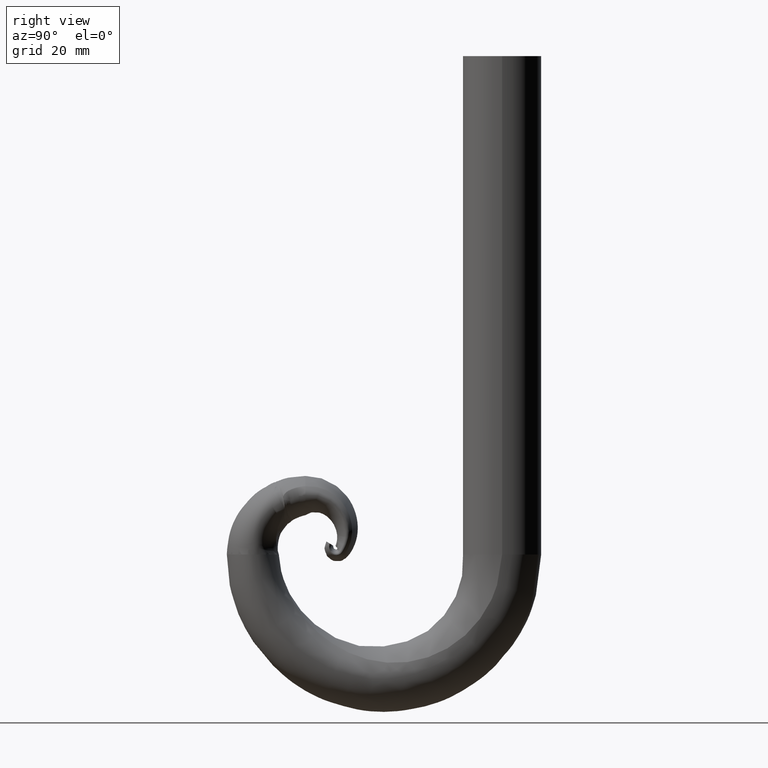
[diagram: clean part render]
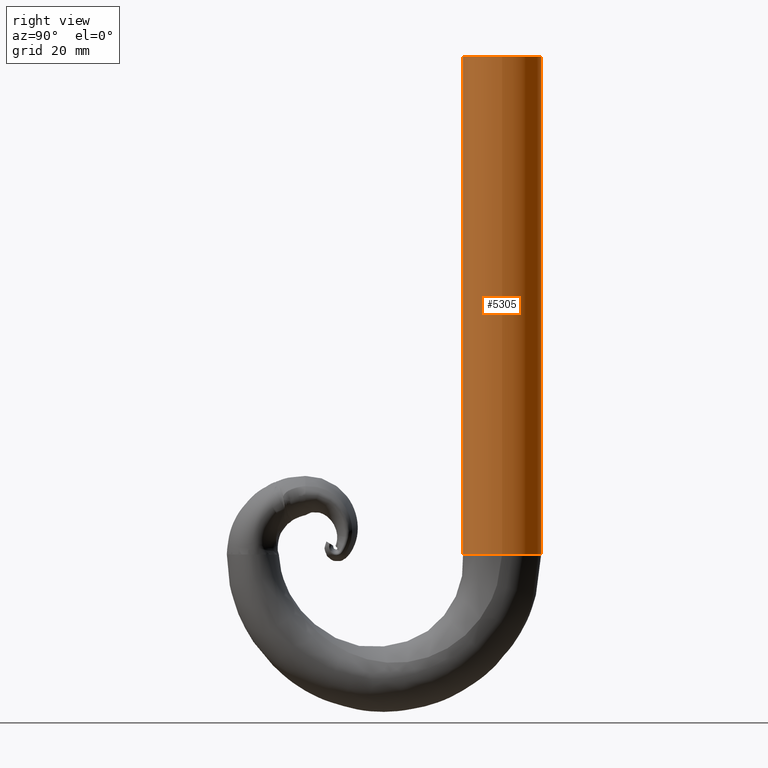
[diagram: same view with one face highlighted and labeled with its STEP entity id]
A machine part, right view. The second image highlights one B-rep face of the part: STEP entity #5305.
In plain terms, the highlighted cylindrical surface (bore or boss wall) has radius 15 mm, axis along (-0, -0, -1).
Its self-contained STEP definition (entity closure, byte-faithful):
#834 = DIRECTION ( 'NONE',  ( -0.0000000000000000000, -0.0000000000000000000, -1.000000000000000000 ) ) ;
#975 = CARTESIAN_POINT ( 'NONE',  ( 15.00000000000000000, 105.0000000000000000, 0.0000000000000000000 ) ) ;
#1261 = CARTESIAN_POINT ( 'NONE',  ( 0.0000000000000000000, 105.0000000000000000, 189.9999999999999700 ) ) ;
#1543 = AXIS2_PLACEMENT_3D ( 'NONE', #11543, #6706, #7706 ) ;
#1817 = FACE_OUTER_BOUND ( 'NONE', #8479, .T. ) ;
#2657 = EDGE_LOOP ( 'NONE', ( #5121 ) ) ;
#2980 = ORIENTED_EDGE ( 'NONE', *, *, #12171, .T. ) ;
#3504 = VERTEX_POINT ( 'NONE', #975 ) ;
#4772 = CARTESIAN_POINT ( 'NONE',  ( 0.0000000000000000000, 105.0000000000000000, 189.9999999999999700 ) ) ;
#5121 = ORIENTED_EDGE ( 'NONE', *, *, #10762, .F. ) ;
#5305 = ADVANCED_FACE ( 'NONE', ( #12180, #1817 ), #9684, .T. ) ;
#5666 = VERTEX_POINT ( 'NONE', #6951 ) ;
#5937 = AXIS2_PLACEMENT_3D ( 'NONE', #1261, #8276, #12261 ) ;
#6706 = DIRECTION ( 'NONE',  ( 0.0000000000000000000, 0.0000000000000000000, 1.000000000000000000 ) ) ;
#6951 = CARTESIAN_POINT ( 'NONE',  ( 15.00000000000000000, 105.0000000000000000, 189.9999999999999700 ) ) ;
#7706 = DIRECTION ( 'NONE',  ( 1.000000000000000000, 0.0000000000000000000, 0.0000000000000000000 ) ) ;
#7941 = CIRCLE ( 'NONE', #1543, 15.00000000000000000 ) ;
#8276 = DIRECTION ( 'NONE',  ( 0.0000000000000000000, 0.0000000000000000000, 1.000000000000000000 ) ) ;
#8479 = EDGE_LOOP ( 'NONE', ( #2980 ) ) ;
#9684 = CYLINDRICAL_SURFACE ( 'NONE', #12304, 15.00000000000000000 ) ;
#10762 = EDGE_CURVE ( 'NONE', #5666, #5666, #11972, .T. ) ;
#11543 = CARTESIAN_POINT ( 'NONE',  ( 0.0000000000000000000, 105.0000000000000000, 0.0000000000000000000 ) ) ;
#11618 = DIRECTION ( 'NONE',  ( -1.000000000000000000, 0.0000000000000000000, 0.0000000000000000000 ) ) ;
#11972 = CIRCLE ( 'NONE', #5937, 15.00000000000000000 ) ;
#12171 = EDGE_CURVE ( 'NONE', #3504, #3504, #7941, .T. ) ;
#12180 = FACE_OUTER_BOUND ( 'NONE', #2657, .T. ) ;
#12261 = DIRECTION ( 'NONE',  ( 1.000000000000000000, 0.0000000000000000000, 0.0000000000000000000 ) ) ;
#12304 = AXIS2_PLACEMENT_3D ( 'NONE', #4772, #834, #11618 ) ;